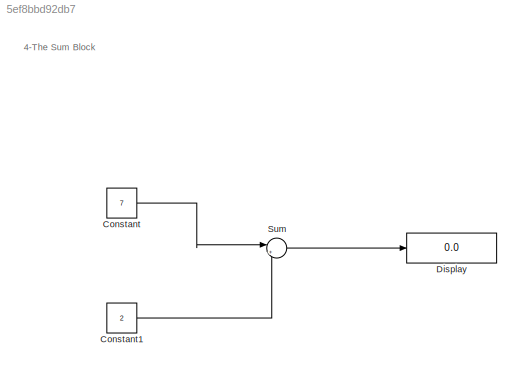
MODEL slx_5ef8bbd92db7
KIND model
CONFIG AbsTol = auto
CONFIG EnableMultiTasking = off
CONFIG FixedStep = auto
CONFIG MaxStep = auto
CONFIG MinStep = auto
CONFIG RelTol = 1e-3
CONFIG SampleTimeConstraint = Unconstrained
CONFIG SolverName = VariableStepAuto
CONFIG StartTime = 0.0
CONFIG StopTime = 10.0
BLOCK [Constant] Constant
  Value = 7
BLOCK [Constant] Constant1
  Value = 2
BLOCK [Display] Display
  Decimation = 1
  Ports = [1]
BLOCK [Sum] Sum
  Inputs = |++
  Ports = [2, 1]
ANNOTATION (root): 4- The Sum Block
LINE Constant1:1 -> Sum:2
LINE Constant:1 -> Sum:1
LINE Sum:1 -> Display:1
